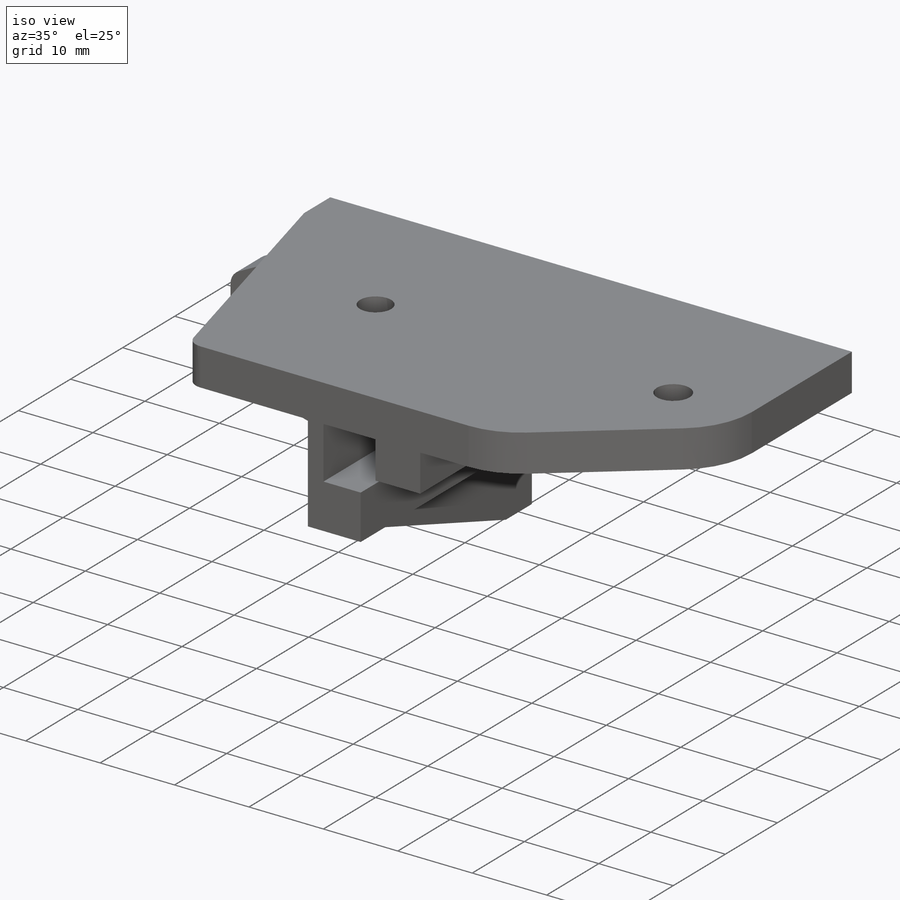
[diagram: iso view]
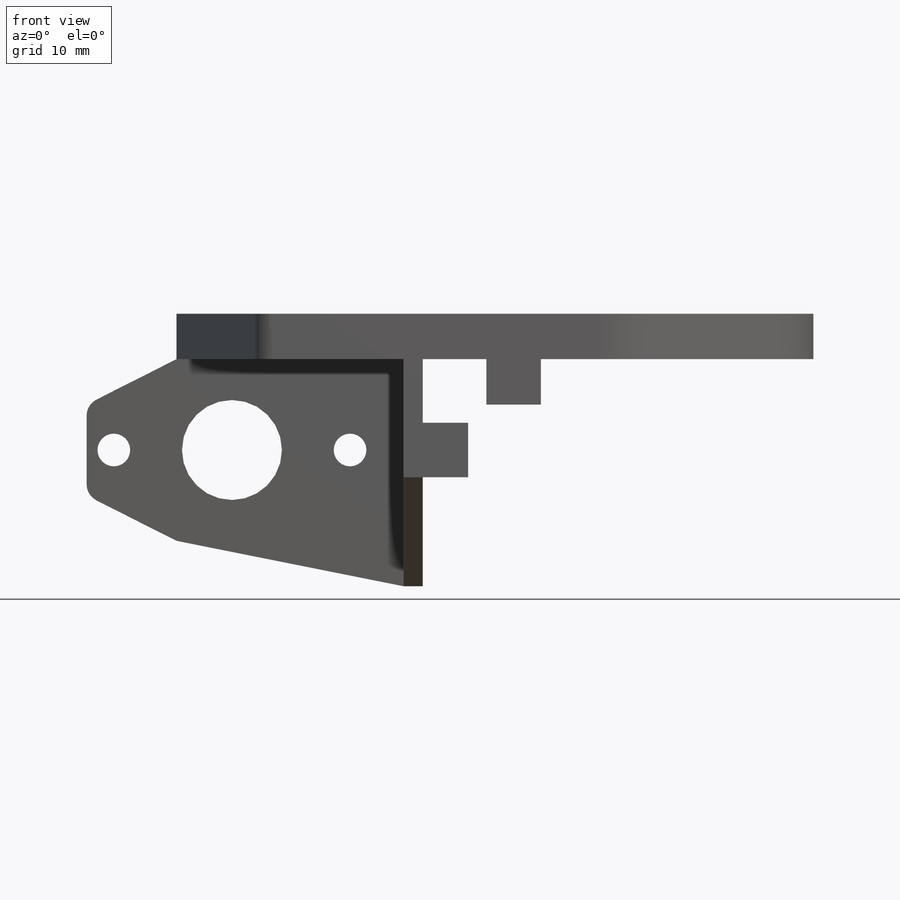
[diagram: front view]
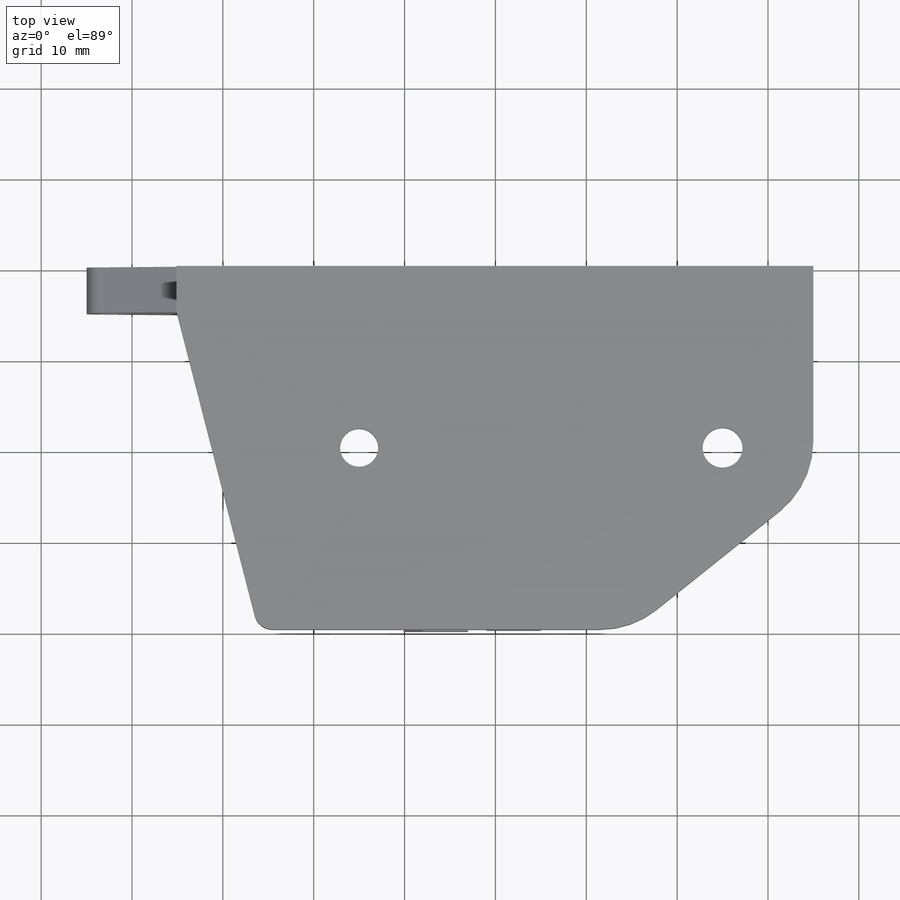
[diagram: top view]
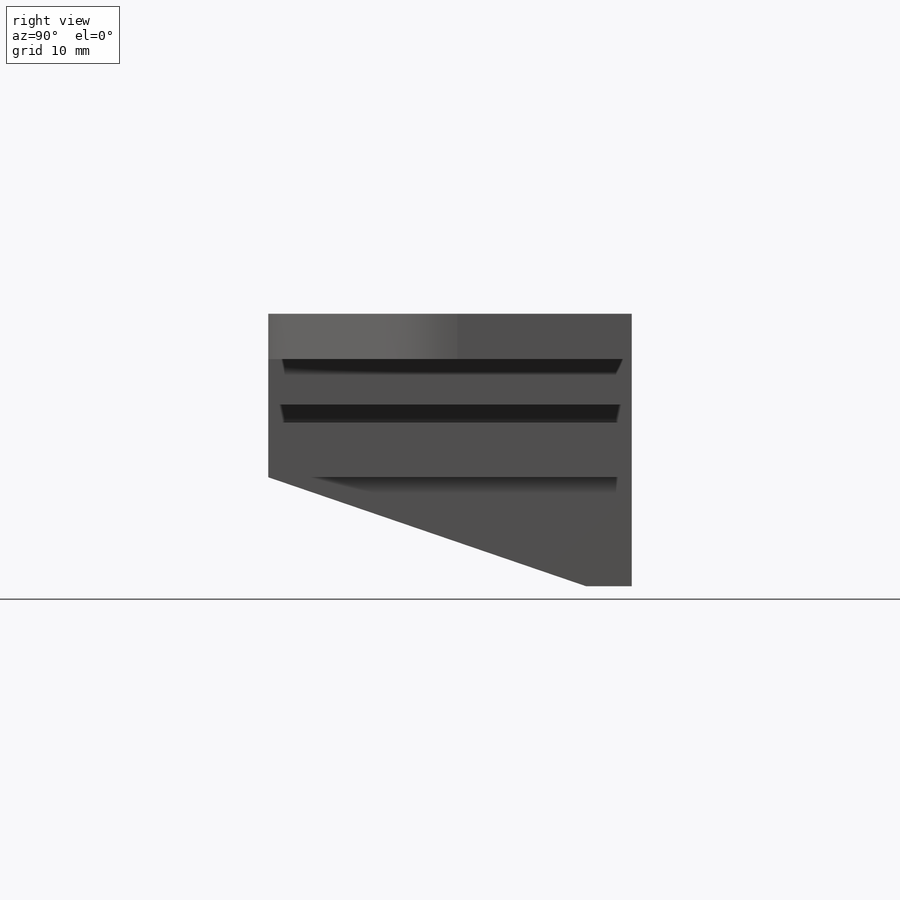
[diagram: right view]
SOLIDWORKS PART (.sldprt)
format: sldprt  version: not decoded by parser v0  size: 382,464 bytes
history: native  units: mm
features: sketch x13, cut_extrude x10, extrude x3, fillet x3, chamfer x2, material x1, move_body x1 (+11 scaffold rows collapsed; 1 parser-record rows omitted)
feature tree (45):
  scaffold x11  (default folders/planes/origin — collapsed)
  material  "Material <not specified>"
  parser-record x1  (decoder bookkeeping rows leaked as tree rows — omitted from the tree; the rows remain in map.json)
  sketch  "Esquisse1"  dims[D1=30.0mm D2=15.0mm D3=50.0mm D4=25.0mm]
  extrude  "Boss.-Extru.1"  Depth=40mm
  sketch  "Esquisse2"  dims[c1.D1=7.0mm c1.D2=7.0mm c1.D3=7.0mm c1.D4=7.0mm c1.D5=6.0mm c1.D6=6.0mm c1.D7=6.0mm c1.D8=5.0mm c1.D9=4.0mm c2.D7=6.0mm c2.D9=7.0mm]
  cut_extrude  "Enlèv. mat.-Extru.1"  [1 undecoded]
  sketch  "Esquisse3"  dims[c1.D1=5.0mm c1.D2=5.0mm c1.D3=5.0mm c1.D4=~7.81025mm c1.D5=2.0mm c2.D3=5.0mm]
  cut_extrude  "Enlèv. mat.-Extru.2"  [1 undecoded]
  sketch  "Esquisse5"  dims[c1.D1=2.0mm c1.D2=~5.292447mm c2.D1=2.0mm c2.D2=~5.292447mm c2.D3=2.1mm c3.D1=2.1mm c3.D3=90.0deg]
  cut_extrude  "Enlèv. mat.-Extru.4"  Depth=35mm
  sketch  "Esquisse7"  dims[c1.D1=11.0mm c1.D4=3.6mm c1.D5=3.6mm c2.D1=7.0mm c2.D2=11.5mm c2.D3=5.0mm c2.D4=24.0mm c3.D2=21.0mm c3.D3=15.0mm c3.D6=13.0mm c3.D7=10.0mm c3.D8=15.0mm c3.D9=15.0mm c4.D7=13.0mm c4.D10=~21.362045mm c4.D11=3.0mm c4.D2=21.0mm]
  cut_extrude  "Enlèv. mat.-Extru.6"  [1 undecoded]
  sketch  "Esquisse9"  dims[D1=16.0mm D2=25.0mm]
  extrude  "Boss.-Extru.2"  Depth=5mm
  sketch  "Esquisse10"  dims[D1=4.2mm D2=20.0mm D3=20.0mm]
  cut_extrude  "Enlèv. mat.-Extru.7"  [1 undecoded]
  sketch  "Esquisse11"
  cut_extrude  "Enlèv. mat.-Extru.8"  Depth=1mm
  sketch  "Esquisse13"  dims[D1=10.0mm D2=10.0mm D3=5.0mm D4=9.9mm]
  cut_extrude  "Enlèv. mat.-Extru.9"  [1 undecoded]
  fillet  "Congé2"  Radius=2mm
  sketch  "Esquisse14"
  cut_extrude  "Enlèv. mat.-Extru.10"  [1 undecoded]
  sketch  "Esquisse15"  dims[D1=5.0mm]
  extrude  "Boss.-Extru.3"  Depth=30mm
  sketch  "Esquisse16"  dims[D2=4.4mm D1=10.0mm D3=20.0mm]
  cut_extrude  "Enlèv. mat.-Extru.11"  [1 undecoded]
  sketch  "Esquisse17"
  cut_extrude  "Enlèv. mat.-Extru.12"  Depth=1mm
  chamfer  "Chanfrein1"  Distance=20mm
  fillet  "Congé3"  Radius=10mm
  chamfer  "Chanfrein2"  Distance=35mm
  fillet  "Congé4"  Radius=10mm
  move_body  "Body-Move/Copy1"
decode coverage: 21 of 32 modeling features carry decoded parameters
note: ~ marks probable driven/reference dimensions
note: 7 parameter values undecoded
summary: no parameter record found for 7 features
note: suppression state not decoded; provenance and decode notes live in map.json
